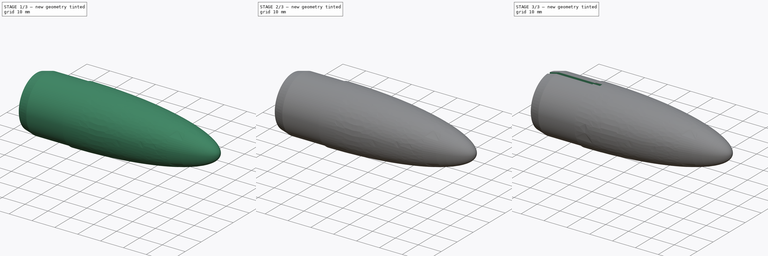
[diagram: build sequence overview — one tinted view per stage of 3, left to right]
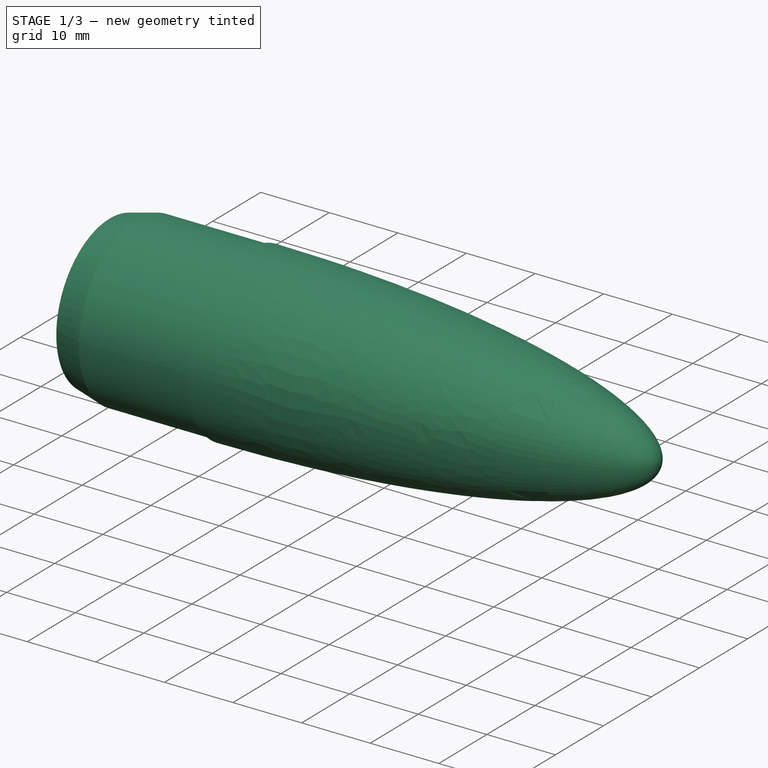
[diagram: stage 1 of 3 — iso view after this stage's code; geometry added in this stage tinted green]
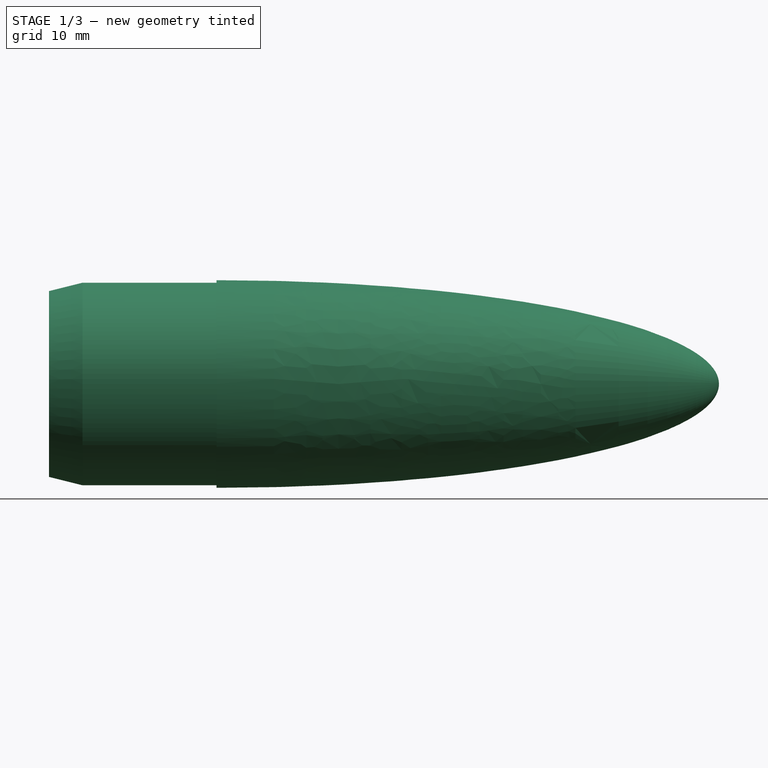
[diagram: stage 1 of 3 — front view after this stage's code; geometry added in this stage tinted green]
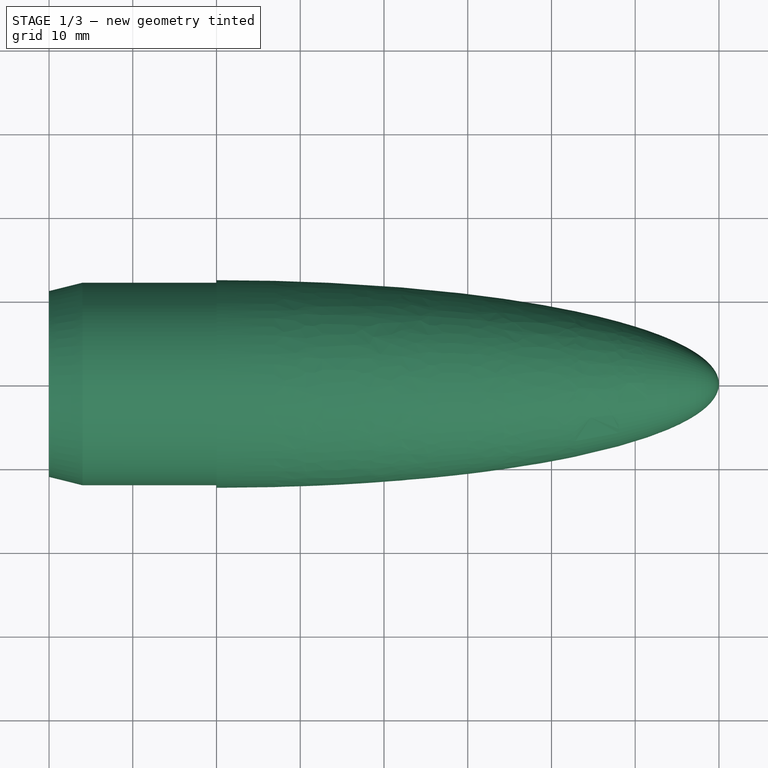
[diagram: stage 1 of 3 — top view after this stage's code; geometry added in this stage tinted green]
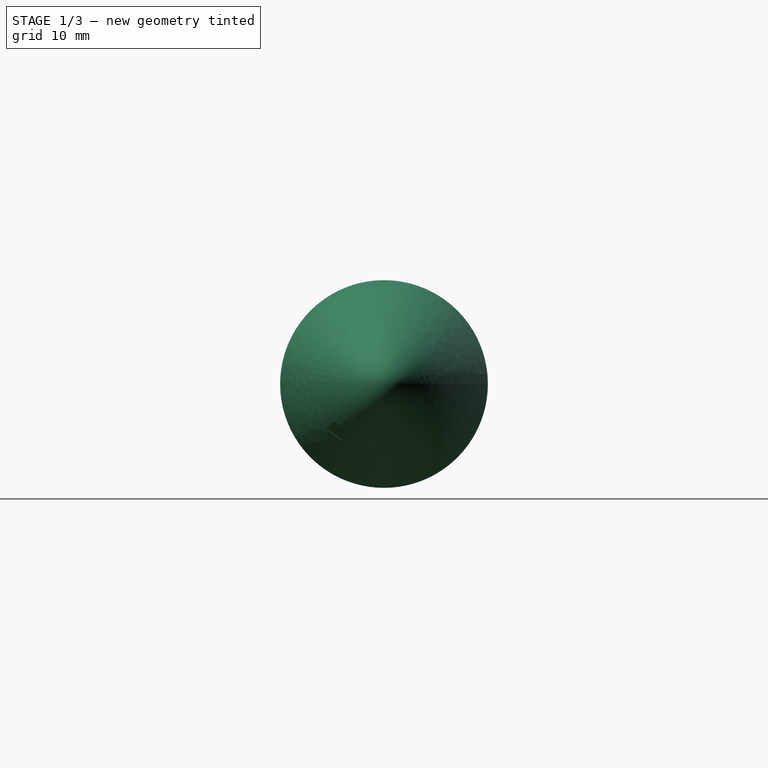
[diagram: stage 1 of 3 — right view after this stage's code; geometry added in this stage tinted green]
FCSTD DOCUMENT  (FreeCAD 0.20R29603 (Git))
Label: Ez3D-Mini NoseConeV2
License: All rights reserved
LicenseURL: http://en.wikipedia.org/wiki/All_rights_reserved
objects: Sketcher::SketchObject×3, Part::FeaturePython×1, PartDesign::Chamfer×1, PartDesign::Hole×1, PartDesign::Pocket×1, PartDesign::Pad×1, PartDesign::Body×1, App::Part×1
note: 13 computed .brp shape members not serialized (recipe doc carries the construction recipe); baked Part::Feature solids carry a one-line shape summary decoded from their .brp

FEATURE [Part::FeaturePython] NoseCone  # WARN: FeaturePython — macro-defined, semantics opaque (R4)
  Coefficient = 0
  Diameter = 24.8
  Length = 60
  NoseStyle = 0
  NoseType = 1
  Resolution = 100
  Shoulder = true
  ShoulderDiameter = 24.2
  ShoulderLength = 20
  ShoulderThickness = 2
  Thickness = 2
FEATURE [PartDesign::Chamfer] Chamfer
  Angle = 45
  Base = -> NoseCone [Face2]
  ChamferType = 1
  FlipDirection = false
  Size = 1
  Size2 = 4
  SupportTransform = false
  UseAllEdges = false
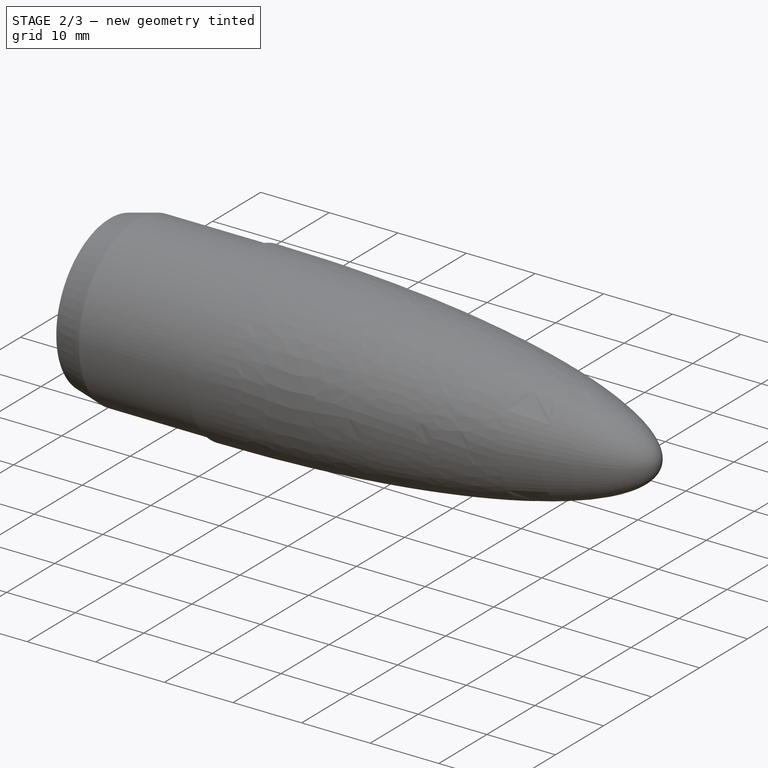
[diagram: stage 2 of 3 — iso view after this stage's code; geometry added in this stage tinted green]
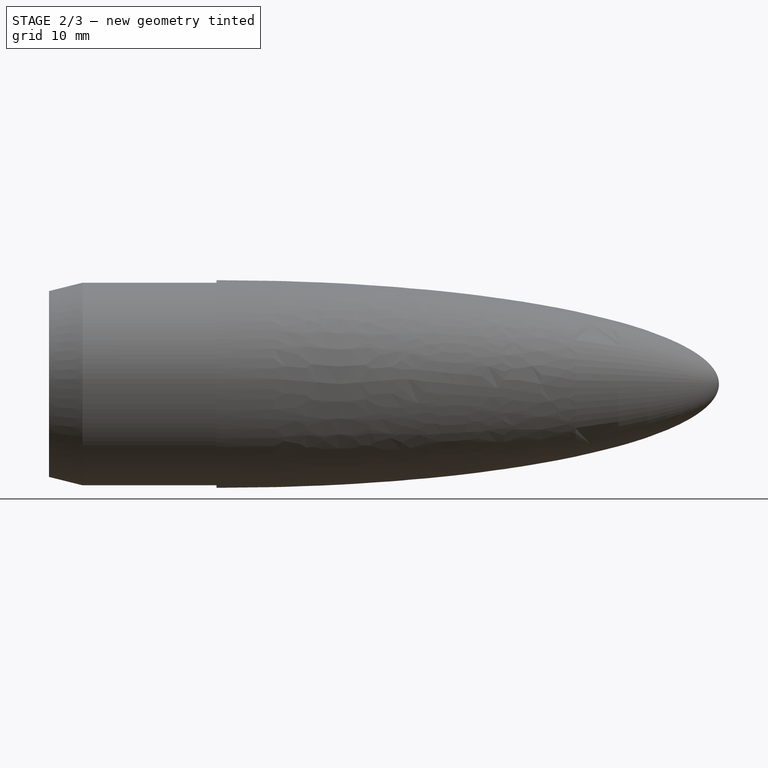
[diagram: stage 2 of 3 — front view after this stage's code; geometry added in this stage tinted green]
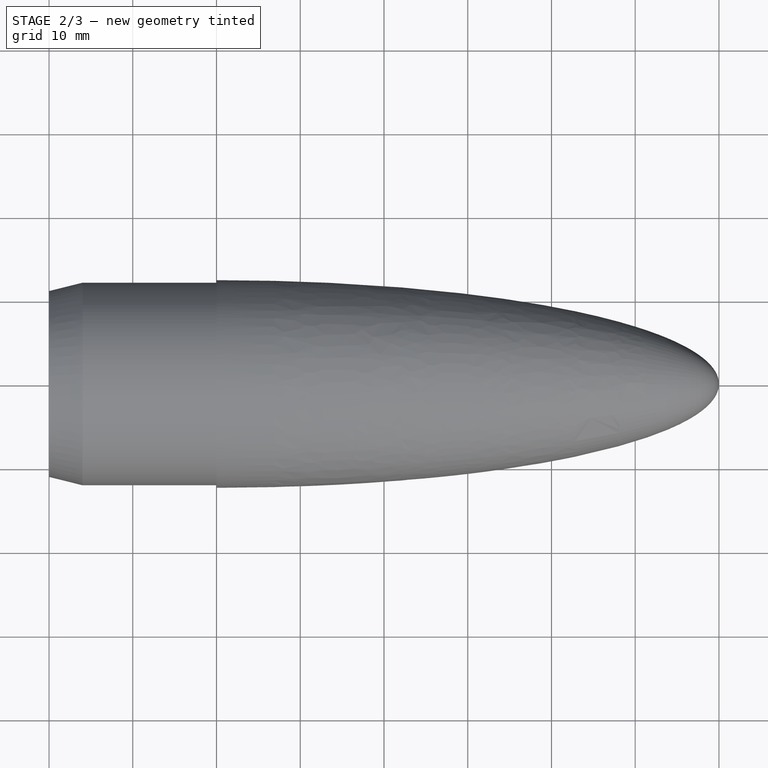
[diagram: stage 2 of 3 — top view after this stage's code; geometry added in this stage tinted green]
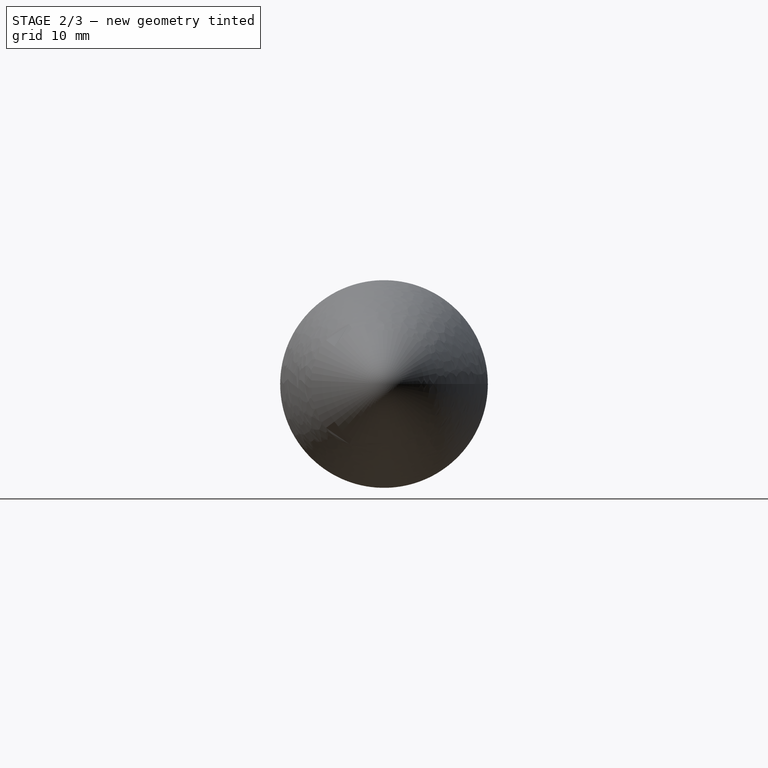
[diagram: stage 2 of 3 — right view after this stage's code; geometry added in this stage tinted green]
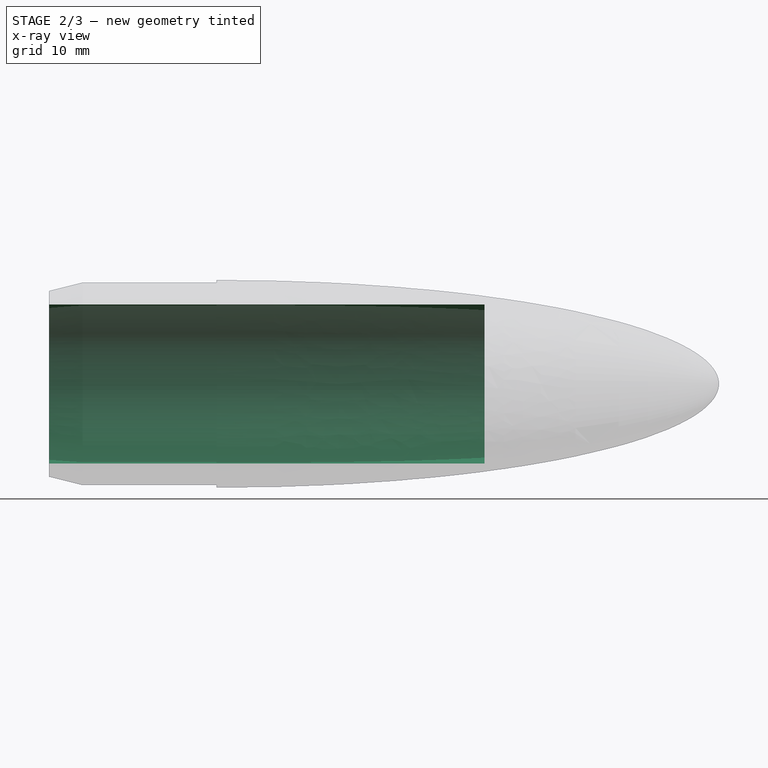
[diagram: stage 2 of 3 — x-ray composite at the front view; earlier geometry ghosted, this stage's added geometry solid]
FEATURE [PartDesign::Hole] Hole
  BaseFeature = -> Chamfer
  CustomThreadClearance = 0
  Depth = 52
  DepthType = 0
  Diameter = 19
  DrillForDepth = false
  DrillPoint = 0
  DrillPointAngle = 118
  HoleCutCountersinkAngle = 90
  HoleCutCustomValues = false
  HoleCutDepth = 0
  HoleCutDiameter = 20.1
  HoleCutType = 0
  ModelThread = false
  Profile = -> Chamfer [Face1]
  Tapered = false
  TaperedAngle = 90
  ThreadClass = 0
  ThreadDepth = 52
  ThreadDepthType = 0
  ThreadDirection = 0
  ThreadFit = 0
  ThreadSize = 0
  ThreadType = 0
  Threaded = false
  UseCustomThreadClearance = false
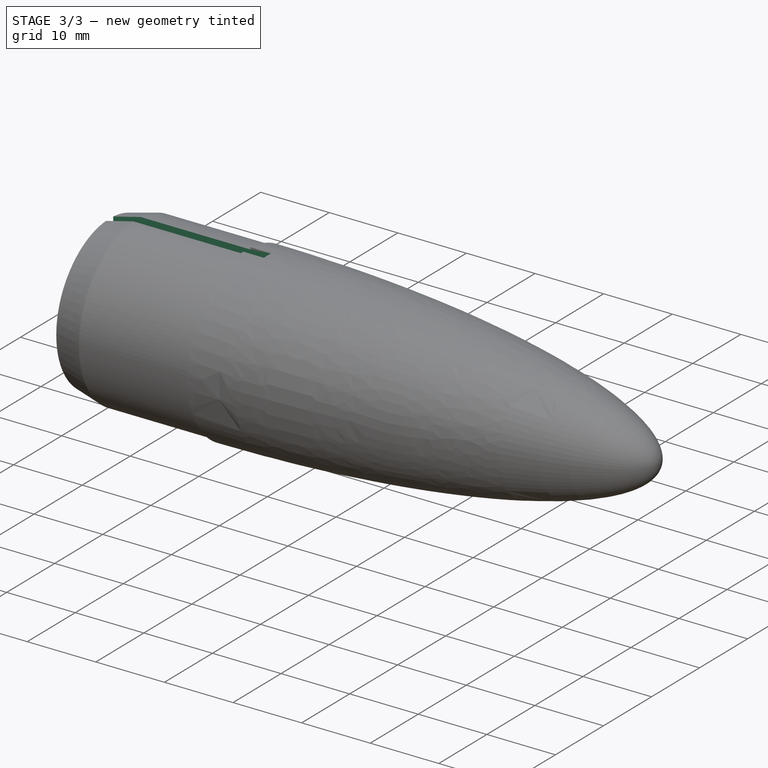
[diagram: stage 3 of 3 — iso view after this stage's code; geometry added in this stage tinted green]
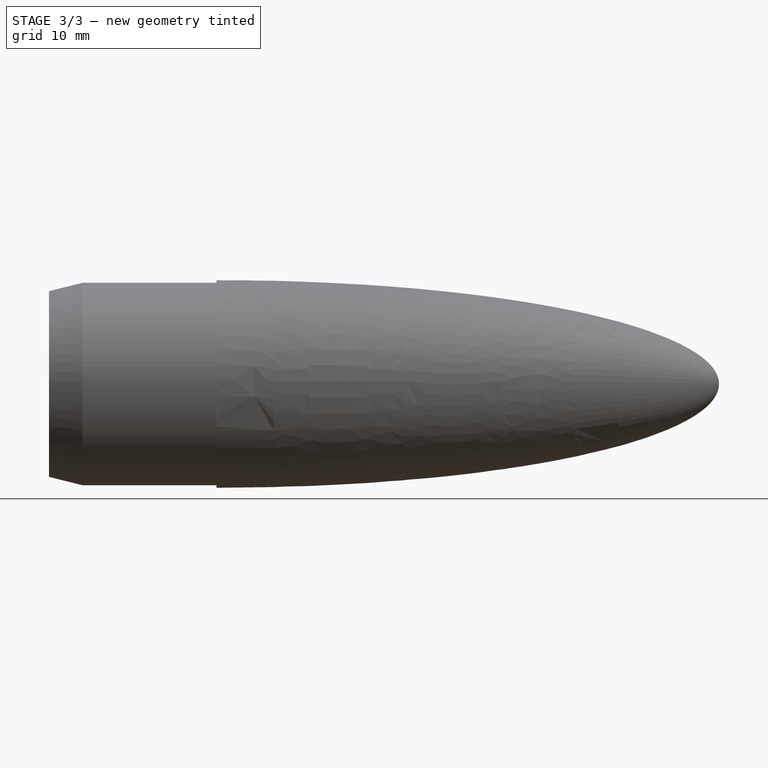
[diagram: stage 3 of 3 — front view after this stage's code; geometry added in this stage tinted green]
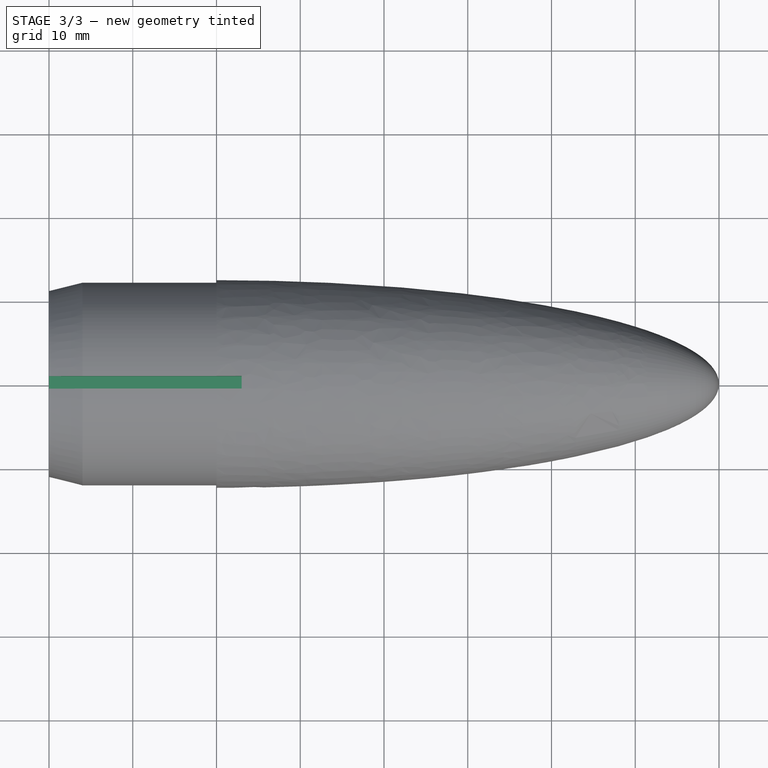
[diagram: stage 3 of 3 — top view after this stage's code; geometry added in this stage tinted green]
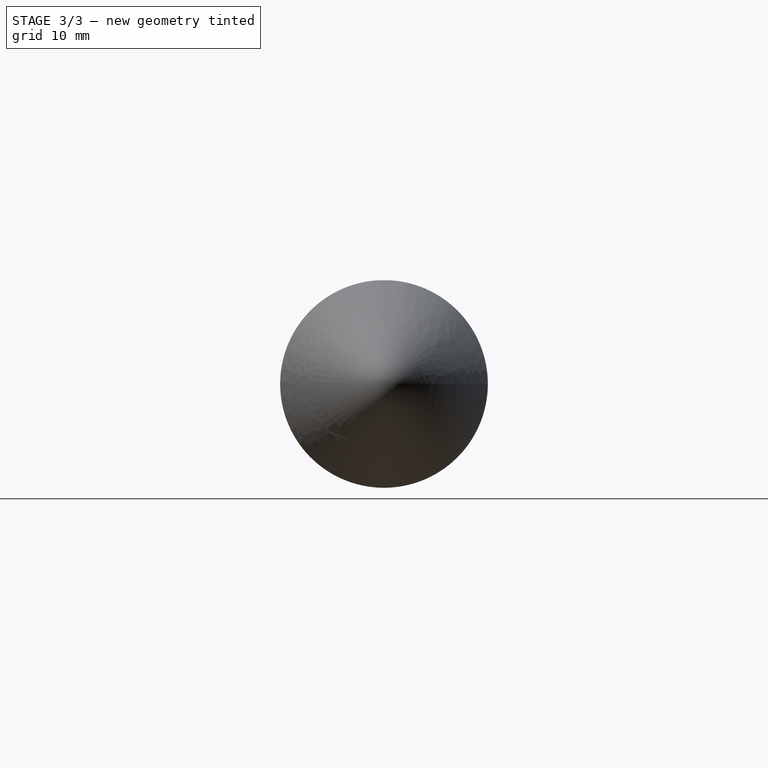
[diagram: stage 3 of 3 — right view after this stage's code; geometry added in this stage tinted green]
FEATURE [Sketcher::SketchObject] Sketch
  FullyConstrained = true
  MapMode = 5
  Support = -> [XY_Plane001]
FEATURE [Sketcher::SketchObject] Sketch001
  FullyConstrained = false
  MapMode = 5
  Placement = pos=(-20,0,0) rot=(0.57735,-0.57735,-0.57735;2.0944rad)
  Support = -> [Hole]
  sketch-geometry (4):
    g0: LineSegment StartX=-0.75 StartY=14.6623 StartZ=0 EndX=0.75 EndY=14.6623 EndZ=0
    g1: LineSegment StartX=0.75 StartY=14.6623 StartZ=0 EndX=0.75 EndY=10.3158 EndZ=0
    g2: LineSegment StartX=0.75 StartY=10.3158 StartZ=0 EndX=-0.75 EndY=10.3158 EndZ=0
    g3: LineSegment StartX=-0.75 StartY=10.3158 StartZ=0 EndX=-0.75 EndY=14.6623 EndZ=0
  constraints (9):
    c: Coincident(g0,g1)
    c: Coincident(g1,g2)
    c: Coincident(g2,g3)
    c: Coincident(g3,g0)
    c: Horizontal(g2)
    c: Vertical(g1)
    c: Vertical(g3)
    c: Symmetric(g0,g0,g-2)
    c: DistanceX(g0,g0) = 1.5
FEATURE [PartDesign::Pocket] Pocket
  BaseFeature = -> Hole
  Direction = (1,0,0)
  Length = 23
  Length2 = 100
  Profile = -> Sketch001
  Type = 0
FEATURE [Sketcher::SketchObject] Sketch002
  FullyConstrained = false
  MapMode = 5
  Placement = pos=(0,0,0) rot=(0.57735,0.57735,0.57735;2.0944rad)
  Support = -> [YZ_Plane001]
  sketch-geometry (2):
    g0: Circle CenterX=0 CenterY=-6.54272 CenterZ=0 NormalX=0 NormalY=0 NormalZ=1 AngleXU=0 Radius=3.79444
    g1: Circle CenterX=0 CenterY=-6.54272 CenterZ=0 NormalX=0 NormalY=0 NormalZ=1 AngleXU=0 Radius=3.06821
  constraints (2):
    c: PointOnObject(g0,g-2)
    c: PointOnObject(g1,g-2)
FEATURE [PartDesign::Pad] Pad
  BaseFeature = -> Pocket
  Direction = (1,-2e-16,3e-16)
  Length = 20
  Length2 = 10
  Profile = -> Sketch002
  ReferenceAxis = -> Sketch002 [N_Axis]
  Reversed = true
  Type = 0
FEATURE [PartDesign::Body] Body
  Group = -> [NoseCone,Chamfer,Hole,Sketch,Sketch001,Pocket,Sketch002,Pad]
  Origin = -> Origin001
  Tip = -> Pad
FEATURE [App::Part] Part
  Group = -> [Body]
  Origin = -> Origin
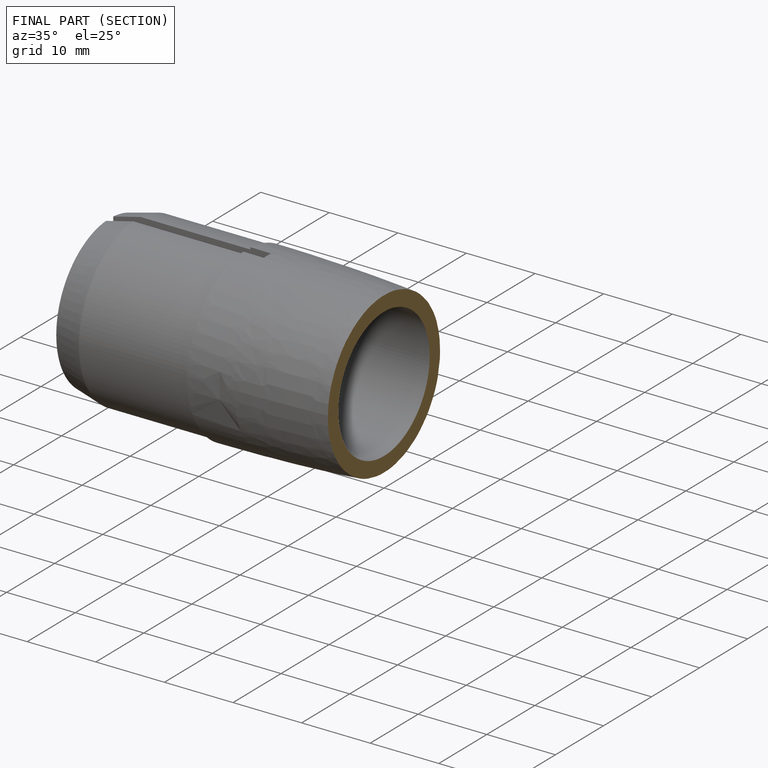
[diagram: finished part — half-section view (interior)]
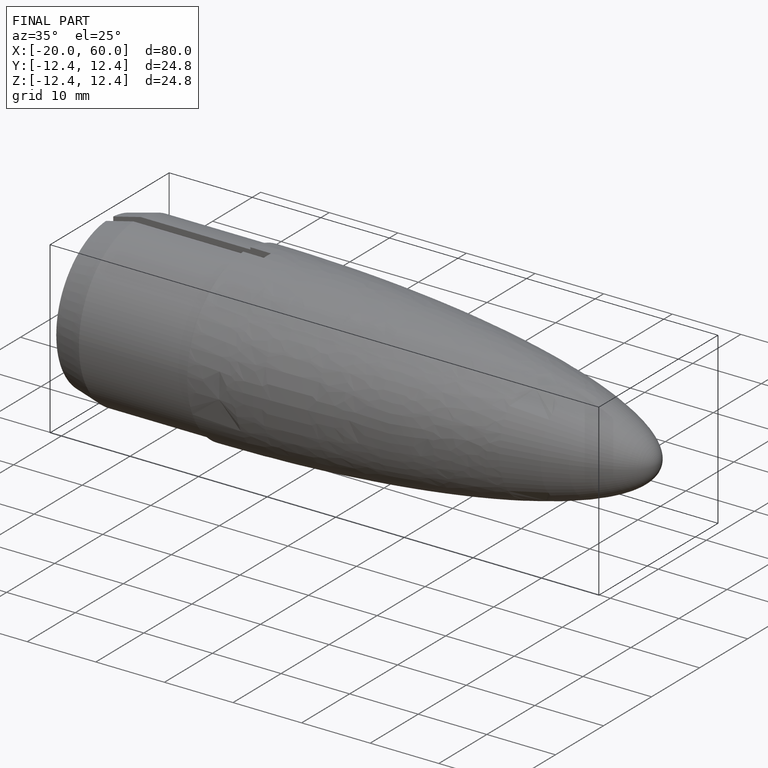
[diagram: finished part — iso view with bounding-box wireframe]
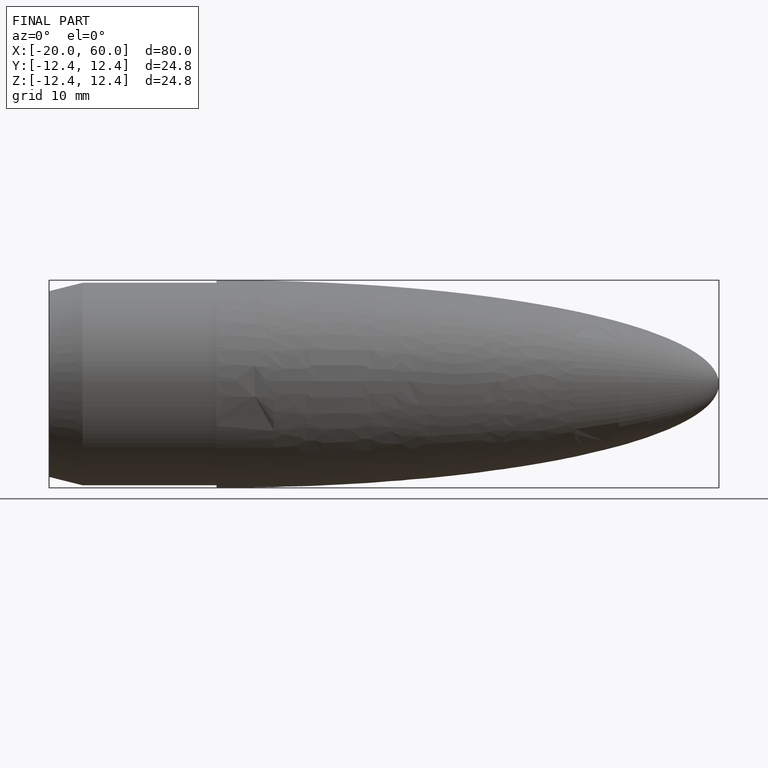
[diagram: finished part — front view with bounding-box wireframe]
